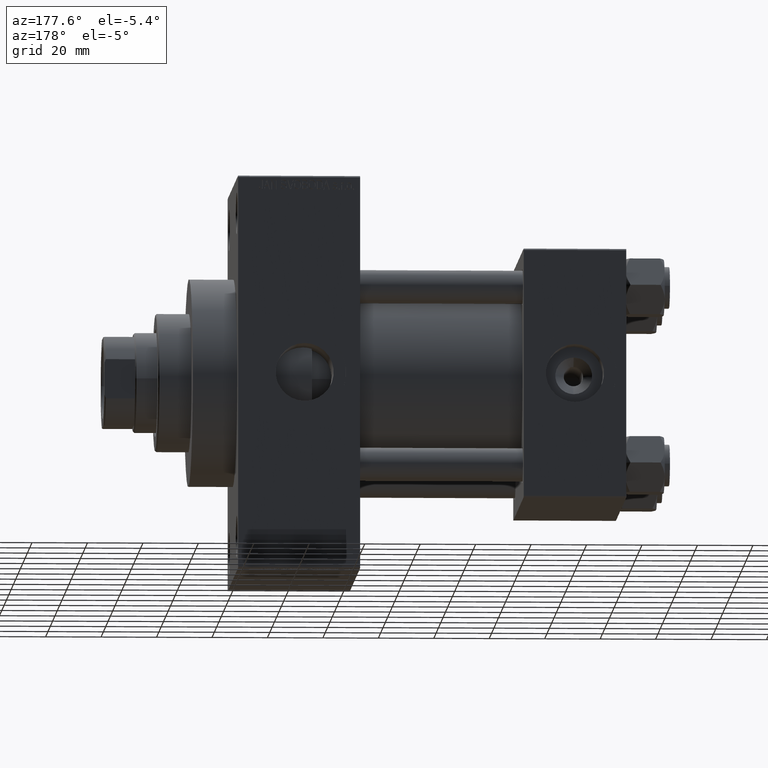
[diagram: clean part render]
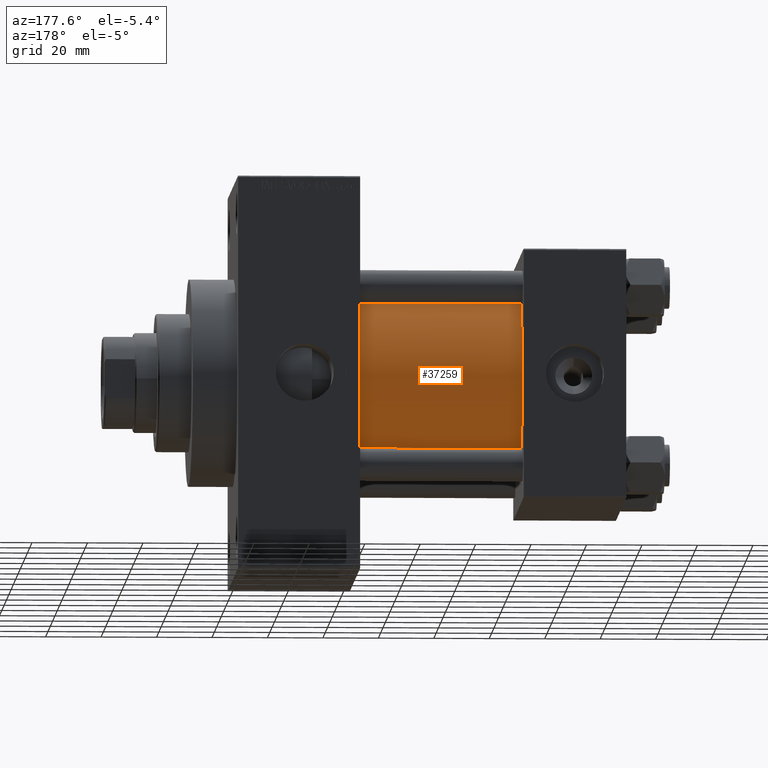
[diagram: same view with one face highlighted and labeled with its STEP entity id]
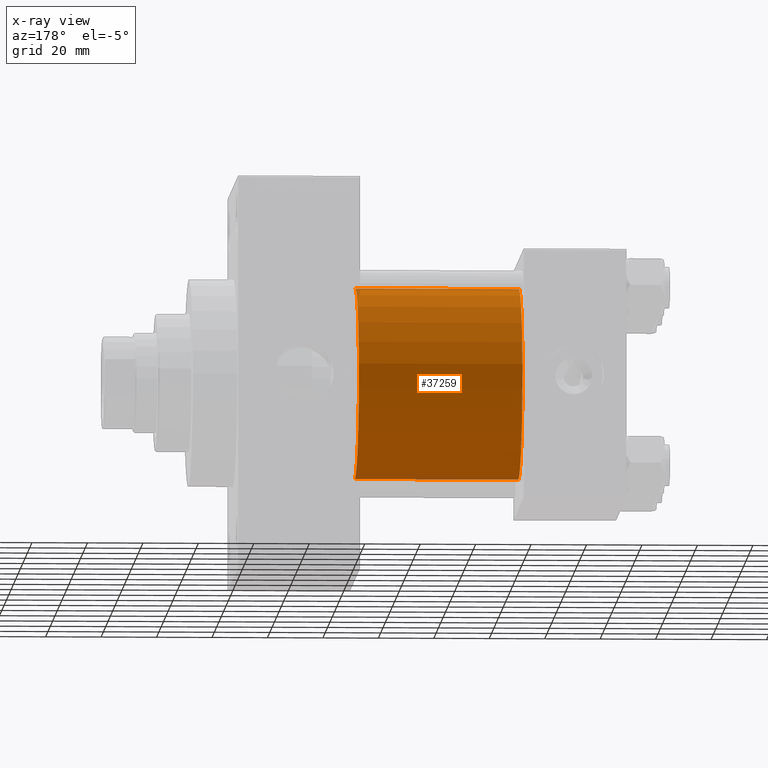
[diagram: x-ray of the same camera — body ghosted, the highlighted face saturated]
A machine part, auxiliary view. The second image highlights one B-rep face of the part: STEP entity #37259.
The next image is the same camera in x-ray: the body ghosted, the highlighted face saturated — about 3% of this face is hidden behind the body in this view.
In plain terms, the highlighted cylindrical surface (partial cylindrical patch) has radius 34.5 mm, axis along (-1, -0, -0).
Its self-contained STEP definition (entity closure, byte-faithful):
#1867 = CARTESIAN_POINT ( 'NONE',  ( 96.00000000000000000, 1.622946243093158675E-15, -34.50000000000000000 ) ) ;
#1957 = LINE ( 'NONE', #31303, #4213 ) ;
#3399 = DIRECTION ( 'NONE',  ( 0.000000000000000000, 0.000000000000000000, -1.000000000000000000 ) ) ;
#3737 = DIRECTION ( 'NONE',  ( -1.000000000000000000, -0.000000000000000000, -0.000000000000000000 ) ) ;
#3889 = VERTEX_POINT ( 'NONE', #40665 ) ;
#4213 = VECTOR ( 'NONE', #27723, 1000.000000000000000 ) ;
#4250 = CARTESIAN_POINT ( 'NONE',  ( 37.00000000000000000, -2.602085213965210642E-15, 34.50000000000000000 ) ) ;
#6911 = EDGE_CURVE ( 'NONE', #3889, #34434, #31061, .T. ) ;
#7821 = DIRECTION ( 'NONE',  ( 0.000000000000000000, 0.000000000000000000, 1.000000000000000000 ) ) ;
#8062 = CYLINDRICAL_SURFACE ( 'NONE', #16945, 34.50000000000000000 ) ;
#8271 = VERTEX_POINT ( 'NONE', #13820 ) ;
#10456 = AXIS2_PLACEMENT_3D ( 'NONE', #35361, #17000, #27510 ) ;
#10665 = LINE ( 'NONE', #25241, #23963 ) ;
#13820 = CARTESIAN_POINT ( 'NONE',  ( 96.00000000000000000, -2.602085213965210642E-15, 34.50000000000000000 ) ) ;
#16945 = AXIS2_PLACEMENT_3D ( 'NONE', #36689, #29297, #7821 ) ;
#17000 = DIRECTION ( 'NONE',  ( 1.000000000000000000, -0.000000000000000000, 0.000000000000000000 ) ) ;
#18215 = CARTESIAN_POINT ( 'NONE',  ( 96.00000000000000000, -2.602085213965210642E-15, 0.000000000000000000 ) ) ;
#19209 = EDGE_LOOP ( 'NONE', ( #41557, #46421, #20079, #23168 ) ) ;
#20079 = ORIENTED_EDGE ( 'NONE', *, *, #6911, .T. ) ;
#23168 = ORIENTED_EDGE ( 'NONE', *, *, #28710, .F. ) ;
#23939 = AXIS2_PLACEMENT_3D ( 'NONE', #18215, #36111, #3399 ) ;
#23963 = VECTOR ( 'NONE', #3737, 1000.000000000000000 ) ;
#25241 = CARTESIAN_POINT ( 'NONE',  ( 96.00000000000000000, 1.622946243093158675E-15, -34.50000000000000000 ) ) ;
#26197 = FACE_OUTER_BOUND ( 'NONE', #19209, .T. ) ;
#26533 = VERTEX_POINT ( 'NONE', #1867 ) ;
#27510 = DIRECTION ( 'NONE',  ( 0.000000000000000000, 0.000000000000000000, 1.000000000000000000 ) ) ;
#27723 = DIRECTION ( 'NONE',  ( -1.000000000000000000, -0.000000000000000000, -0.000000000000000000 ) ) ;
#28710 = EDGE_CURVE ( 'NONE', #8271, #34434, #1957, .T. ) ;
#29297 = DIRECTION ( 'NONE',  ( -1.000000000000000000, -0.000000000000000000, -0.000000000000000000 ) ) ;
#31061 = CIRCLE ( 'NONE', #10456, 34.50000000000000000 ) ;
#31303 = CARTESIAN_POINT ( 'NONE',  ( 96.00000000000000000, -2.602085213965210642E-15, 34.50000000000000000 ) ) ;
#34434 = VERTEX_POINT ( 'NONE', #4250 ) ;
#35361 = CARTESIAN_POINT ( 'NONE',  ( 37.00000000000000000, -2.602085213965210642E-15, 0.000000000000000000 ) ) ;
#36111 = DIRECTION ( 'NONE',  ( 1.000000000000000000, 0.000000000000000000, 0.000000000000000000 ) ) ;
#36689 = CARTESIAN_POINT ( 'NONE',  ( 96.00000000000000000, -2.602085213965210642E-15, 0.000000000000000000 ) ) ;
#37259 = ADVANCED_FACE ( 'NONE', ( #26197 ), #8062, .T. ) ;
#39193 = CIRCLE ( 'NONE', #23939, 34.50000000000000000 ) ;
#40665 = CARTESIAN_POINT ( 'NONE',  ( 37.00000000000000000, 1.622946243093158675E-15, -34.50000000000000000 ) ) ;
#41557 = ORIENTED_EDGE ( 'NONE', *, *, #41745, .F. ) ;
#41745 = EDGE_CURVE ( 'NONE', #26533, #8271, #39193, .T. ) ;
#45785 = EDGE_CURVE ( 'NONE', #26533, #3889, #10665, .T. ) ;
#46421 = ORIENTED_EDGE ( 'NONE', *, *, #45785, .T. ) ;